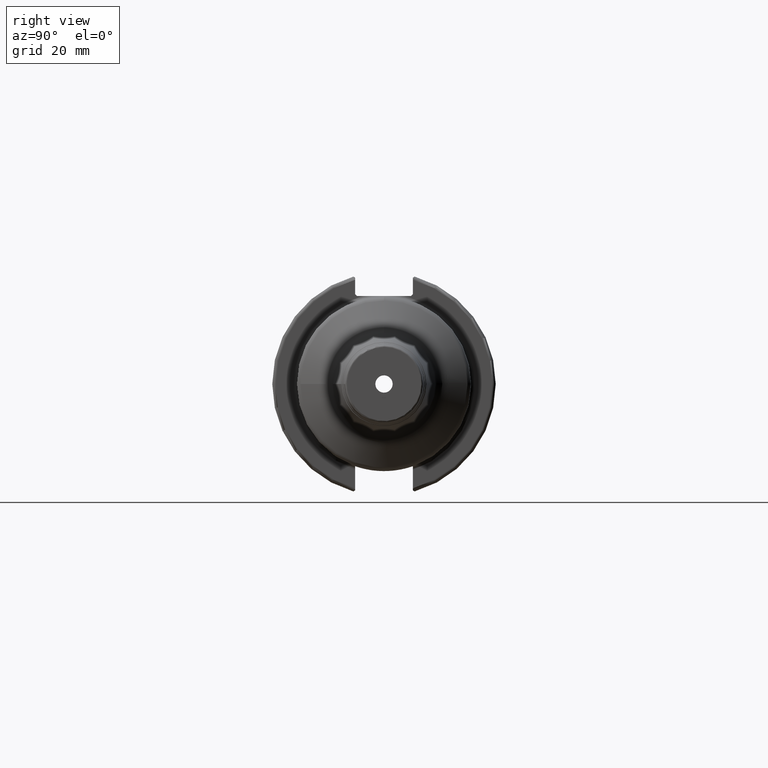
[diagram: clean part render]
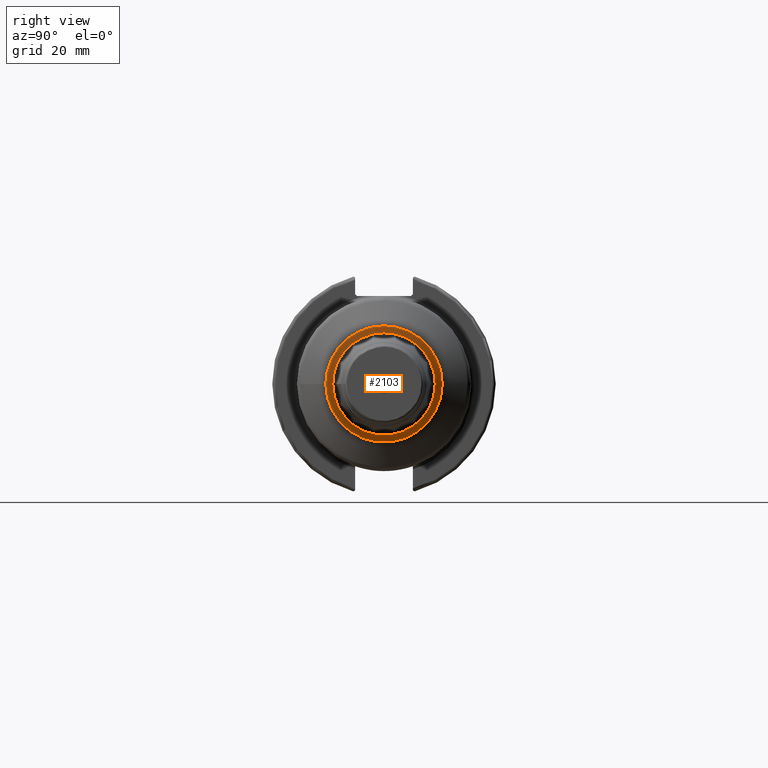
[diagram: same view with one face highlighted and labeled with its STEP entity id]
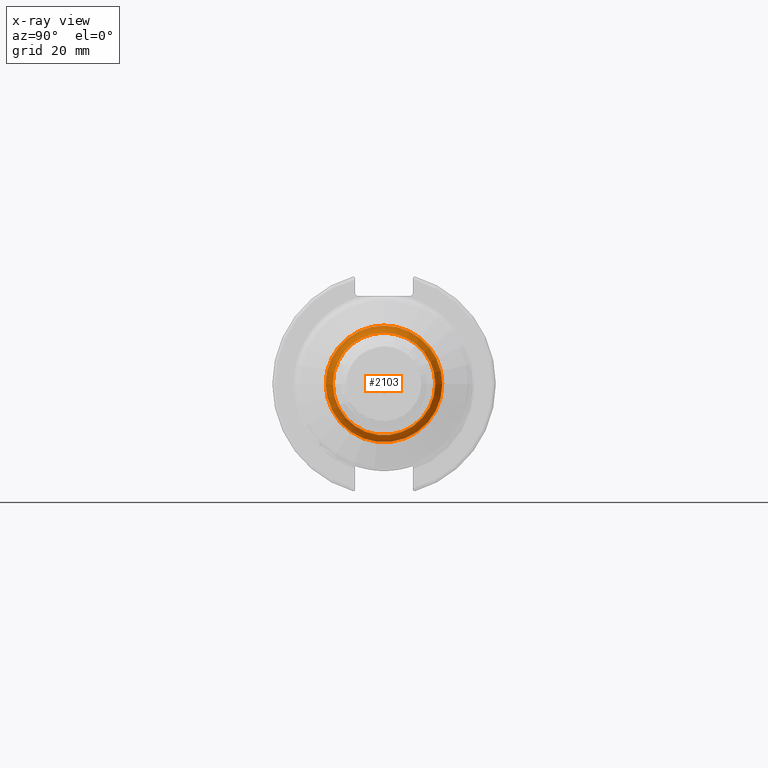
[diagram: x-ray of the same camera — body ghosted, the highlighted face saturated]
A machine part, right view. The second image highlights one B-rep face of the part: STEP entity #2103.
The next image is the same camera in x-ray: the body ghosted, the highlighted face saturated — about 0% of this face is hidden behind the body in this view.
In plain terms, the highlighted toroidal blend (fillet) surface has major radius 18.5494 mm and minor (blend) radius 4 mm.
Its self-contained STEP definition (entity closure, byte-faithful):
#86=TOROIDAL_SURFACE('',#2254,18.5493982658786,4.);
#192=FACE_OUTER_BOUND('',#302,.T.);
#302=EDGE_LOOP('',(#1440,#1441,#1442,#1443,#1444,#1445,#1446,#1447));
#636=CIRCLE('',#2251,16.5493982658786);
#637=CIRCLE('',#2252,16.5493982658786);
#638=CIRCLE('',#2253,16.5493982658786);
#639=CIRCLE('',#2255,4.);
#640=CIRCLE('',#2256,14.5548801268603);
#641=CIRCLE('',#2257,14.5548801268603);
#642=CIRCLE('',#2258,14.5548801268603);
#817=VERTEX_POINT('',#3384);
#818=VERTEX_POINT('',#3385);
#819=VERTEX_POINT('',#3387);
#820=VERTEX_POINT('',#3392);
#821=VERTEX_POINT('',#3394);
#822=VERTEX_POINT('',#3396);
#1069=EDGE_CURVE('',#817,#818,#636,.T.);
#1070=EDGE_CURVE('',#819,#817,#637,.T.);
#1072=EDGE_CURVE('',#818,#819,#638,.T.);
#1073=EDGE_CURVE('',#818,#820,#639,.T.);
#1074=EDGE_CURVE('',#820,#821,#640,.T.);
#1075=EDGE_CURVE('',#821,#822,#641,.T.);
#1076=EDGE_CURVE('',#822,#820,#642,.T.);
#1440=ORIENTED_EDGE('',*,*,#1069,.T.);
#1441=ORIENTED_EDGE('',*,*,#1073,.T.);
#1442=ORIENTED_EDGE('',*,*,#1074,.T.);
#1443=ORIENTED_EDGE('',*,*,#1075,.T.);
#1444=ORIENTED_EDGE('',*,*,#1076,.T.);
#1445=ORIENTED_EDGE('',*,*,#1073,.F.);
#1446=ORIENTED_EDGE('',*,*,#1072,.T.);
#1447=ORIENTED_EDGE('',*,*,#1070,.T.);
#2103=ADVANCED_FACE('',(#192),#86,.F.);
#2251=AXIS2_PLACEMENT_3D('',#3386,#2592,#2593);
#2252=AXIS2_PLACEMENT_3D('',#3388,#2594,#2595);
#2253=AXIS2_PLACEMENT_3D('',#3390,#2597,#2598);
#2254=AXIS2_PLACEMENT_3D('',#3391,#2599,#2600);
#2255=AXIS2_PLACEMENT_3D('',#3393,#2601,#2602);
#2256=AXIS2_PLACEMENT_3D('',#3395,#2603,#2604);
#2257=AXIS2_PLACEMENT_3D('',#3397,#2605,#2606);
#2258=AXIS2_PLACEMENT_3D('',#3398,#2607,#2608);
#2592=DIRECTION('center_axis',(1.,0.,0.));
#2593=DIRECTION('ref_axis',(0.,-1.,3.06161699786838E-17));
#2594=DIRECTION('center_axis',(1.,0.,0.));
#2595=DIRECTION('ref_axis',(0.,-1.,3.06161699786838E-17));
#2597=DIRECTION('center_axis',(1.,0.,0.));
#2598=DIRECTION('ref_axis',(0.,-1.,3.06161699786838E-17));
#2599=DIRECTION('center_axis',(1.,0.,0.));
#2600=DIRECTION('ref_axis',(0.,0.,-1.));
#2601=DIRECTION('center_axis',(0.,-1.,-1.22464679914735E-16));
#2602=DIRECTION('ref_axis',(0.,-1.22464679914735E-16,1.));
#2603=DIRECTION('center_axis',(-1.,0.,0.));
#2604=DIRECTION('ref_axis',(0.,-1.,3.06161699786838E-17));
#2605=DIRECTION('center_axis',(-1.,0.,0.));
#2606=DIRECTION('ref_axis',(0.,-1.,3.06161699786838E-17));
#2607=DIRECTION('center_axis',(-1.,0.,0.));
#2608=DIRECTION('ref_axis',(0.,-1.,3.06161699786838E-17));
#3384=CARTESIAN_POINT('',(48.9140886007231,16.5493982658786,-1.01335838070615E-15));
#3385=CARTESIAN_POINT('',(48.9140886007231,-2.0267167614123E-15,16.5493982658786));
#3386=CARTESIAN_POINT('Origin',(48.9140886007231,0.,-2.53339595176538E-15));
#3387=CARTESIAN_POINT('',(48.9140886007231,-16.5493982658786,-2.0267167614123E-15));
#3388=CARTESIAN_POINT('Origin',(48.9140886007231,0.,-2.53339595176538E-15));
#3390=CARTESIAN_POINT('Origin',(48.9140886007231,0.,-2.53339595176538E-15));
#3391=CARTESIAN_POINT('Origin',(52.3781902158609,0.,0.));
#3392=CARTESIAN_POINT('',(52.1688463908891,-1.78245873593329E-15,14.5548801268603));
#3393=CARTESIAN_POINT('Origin',(52.3781902158609,-2.27164612124177E-15,
18.5493982658786));
#3394=CARTESIAN_POINT('',(52.1688463908891,14.5548801268603,-4.45614683983323E-15));
#3395=CARTESIAN_POINT('Origin',(52.1688463908891,0.,-2.22807341991662E-15));
#3396=CARTESIAN_POINT('',(52.1688463908891,-14.5548801268603,-1.78245873593329E-15));
#3397=CARTESIAN_POINT('Origin',(52.1688463908891,0.,-2.22807341991662E-15));
#3398=CARTESIAN_POINT('Origin',(52.1688463908891,0.,-2.22807341991662E-15));